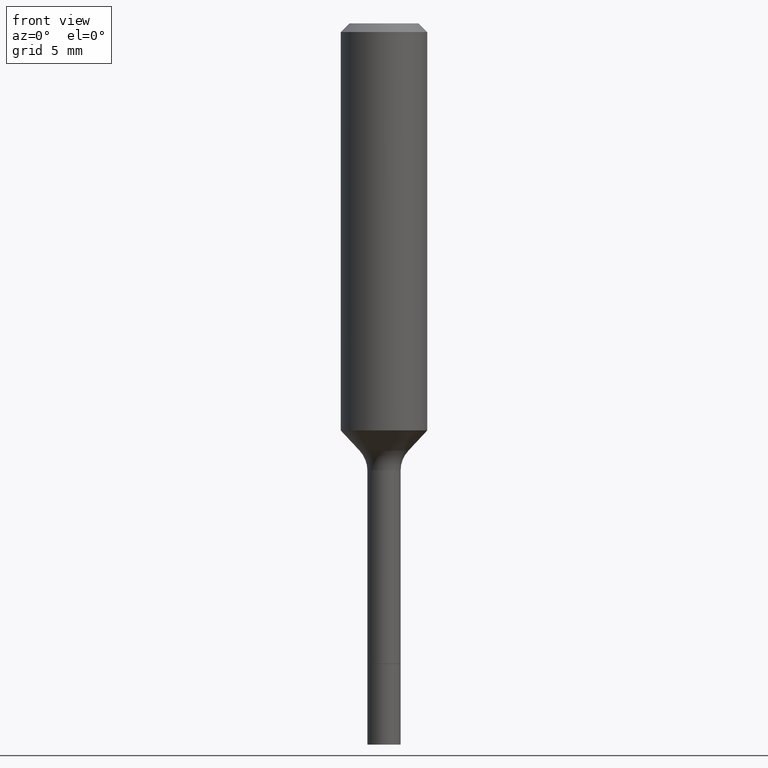
[diagram: clean part render]
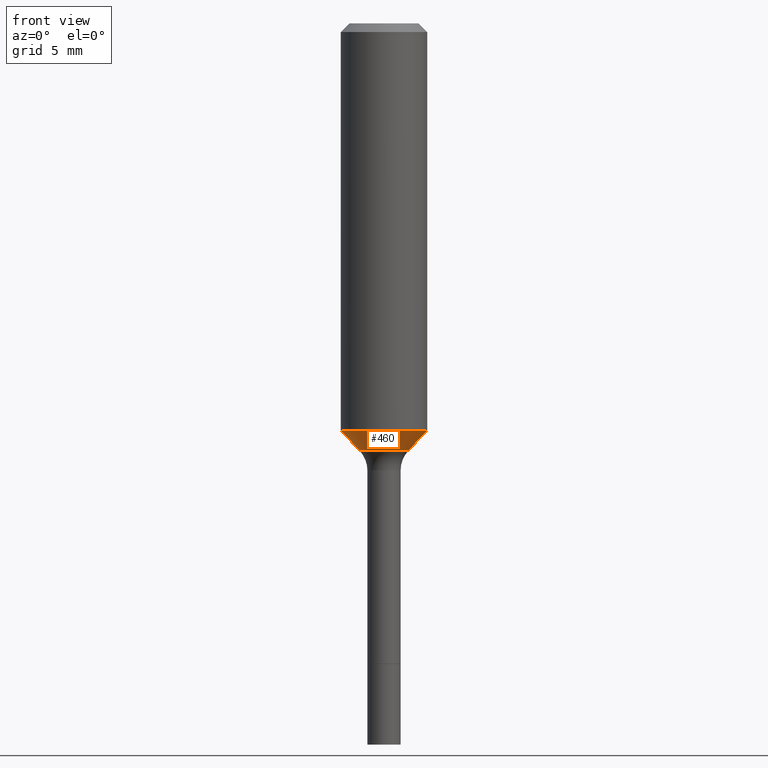
[diagram: same view with one face highlighted and labeled with its STEP entity id]
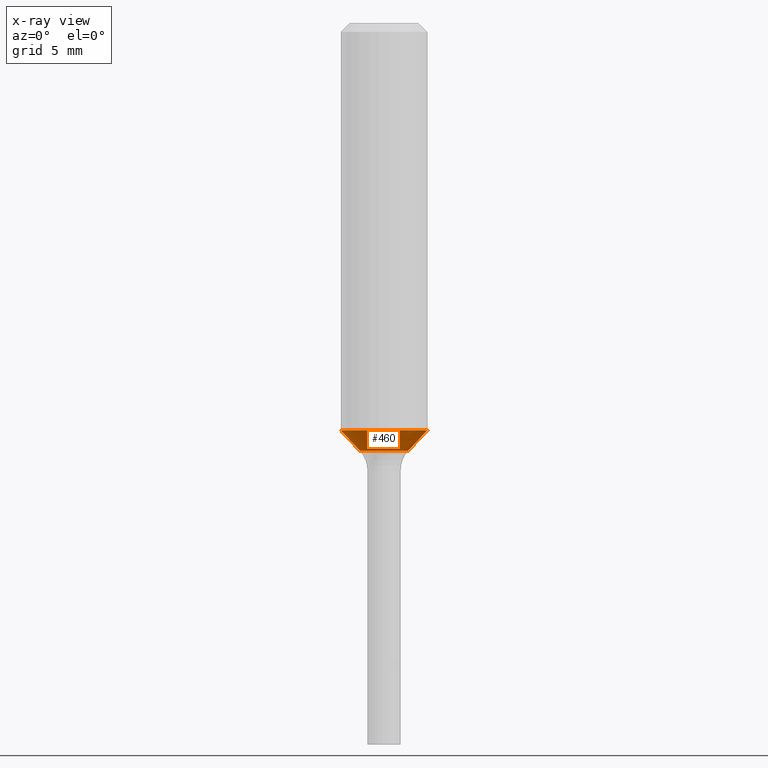
[diagram: x-ray of the same camera — body ghosted, the highlighted face saturated]
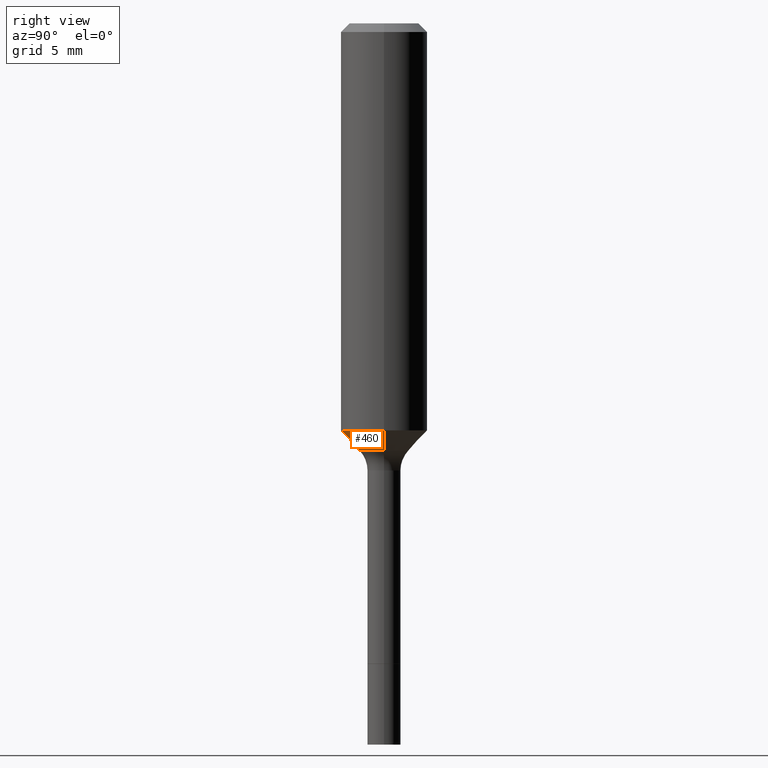
[diagram: same view with one face highlighted and labeled with its STEP entity id]
A machine part, front view. The second image highlights one B-rep face of the part: STEP entity #460.
The next image is the same camera in x-ray: the body ghosted, the highlighted face saturated — about 0% of this face is hidden behind the body in this view.
A second angle (right view) of the same face is appended — the face is thin or edge-on in the first view.
In plain terms, the highlighted conical surface has half-angle 43 deg.
Its self-contained STEP definition (entity closure, byte-faithful):
#10 = DIRECTION ( 'NONE',  ( 1.000000000000000000, -6.982962677686265133E-15, 0.000000000000000000 ) ) ;
#11 = EDGE_CURVE ( 'NONE', #54, #259, #20, .T. ) ;
#13 = CARTESIAN_POINT ( 'NONE',  ( 0.06679170387046629020, -4.537262185582210403E-15, -1.165940131195000173 ) ) ;
#20 = LINE ( 'NONE', #293, #394 ) ;
#26 = CARTESIAN_POINT ( 'NONE',  ( -0.06679170387046629020, -3.596274610333675855E-15, -1.165940131195000173 ) ) ;
#33 = AXIS2_PLACEMENT_3D ( 'NONE', #128, #364, #10 ) ;
#37 = CARTESIAN_POINT ( 'NONE',  ( 0.1181000000000001354, -4.703439871600973275E-15, -1.110918719861007542 ) ) ;
#43 = CONICAL_SURFACE ( 'NONE', #110, 0.06679170387046631796, 0.7504915783575621946 ) ;
#44 = CARTESIAN_POINT ( 'NONE',  ( 2.851270220716778580E-29, -4.070858210275671756E-15, -1.165940131195000173 ) ) ;
#54 = VERTEX_POINT ( 'NONE', #13 ) ;
#90 = ORIENTED_EDGE ( 'NONE', *, *, #11, .T. ) ;
#98 = DIRECTION ( 'NONE',  ( 1.000000000000000000, -6.982962677686263555E-15, 0.000000000000000000 ) ) ;
#108 = VECTOR ( 'NONE', #476, 39.37007874015748143 ) ;
#110 = AXIS2_PLACEMENT_3D ( 'NONE', #290, #409, #98 ) ;
#128 = CARTESIAN_POINT ( 'NONE',  ( 2.716717075627218556E-29, -3.878751979366224224E-15, -1.110918719861007542 ) ) ;
#171 = CARTESIAN_POINT ( 'NONE',  ( -0.06679170387046631796, -3.596274610333675855E-15, -1.165940131195000173 ) ) ;
#183 = DIRECTION ( 'NONE',  ( 0.6819983600624988096, -2.208861293262478564E-15, 0.7313537016191701268 ) ) ;
#204 = DIRECTION ( 'NONE',  ( -2.445468806185136597E-29, 3.491481338843145583E-15, 1.000000000000000000 ) ) ;
#205 = ORIENTED_EDGE ( 'NONE', *, *, #277, .F. ) ;
#212 = AXIS2_PLACEMENT_3D ( 'NONE', #44, #204, #355 ) ;
#249 = EDGE_LOOP ( 'NONE', ( #205, #459, #90, #440 ) ) ;
#259 = VERTEX_POINT ( 'NONE', #37 ) ;
#277 = EDGE_CURVE ( 'NONE', #501, #481, #515, .T. ) ;
#290 = CARTESIAN_POINT ( 'NONE',  ( 2.851270220716778580E-29, -4.070858210275671756E-15, -1.165940131195000173 ) ) ;
#293 = CARTESIAN_POINT ( 'NONE',  ( 0.06679170387046631796, -4.537262185582211192E-15, -1.165940131195000173 ) ) ;
#321 = CIRCLE ( 'NONE', #212, 0.06679170387046631796 ) ;
#334 = FACE_OUTER_BOUND ( 'NONE', #249, .T. ) ;
#340 = CARTESIAN_POINT ( 'NONE',  ( -0.1181000000000001354, -3.039601008433544844E-15, -1.110918719861007542 ) ) ;
#355 = DIRECTION ( 'NONE',  ( 1.000000000000000000, -6.982962677686263555E-15, 0.000000000000000000 ) ) ;
#364 = DIRECTION ( 'NONE',  ( -2.445468806185136597E-29, 3.491481338843145583E-15, 1.000000000000000000 ) ) ;
#394 = VECTOR ( 'NONE', #183, 39.37007874015748143 ) ;
#409 = DIRECTION ( 'NONE',  ( -2.445468806185136597E-29, 3.491481338843145583E-15, 1.000000000000000000 ) ) ;
#428 = EDGE_CURVE ( 'NONE', #481, #259, #435, .T. ) ;
#435 = CIRCLE ( 'NONE', #33, 0.1181000000000001354 ) ;
#440 = ORIENTED_EDGE ( 'NONE', *, *, #428, .F. ) ;
#443 = EDGE_CURVE ( 'NONE', #501, #54, #321, .T. ) ;
#459 = ORIENTED_EDGE ( 'NONE', *, *, #443, .T. ) ;
#460 = ADVANCED_FACE ( 'NONE', ( #334 ), #43, .T. ) ;
#476 = DIRECTION ( 'NONE',  ( -0.6819983600624988096, 7.399397606724288154E-15, 0.7313537016191701268 ) ) ;
#481 = VERTEX_POINT ( 'NONE', #340 ) ;
#501 = VERTEX_POINT ( 'NONE', #26 ) ;
#515 = LINE ( 'NONE', #171, #108 ) ;